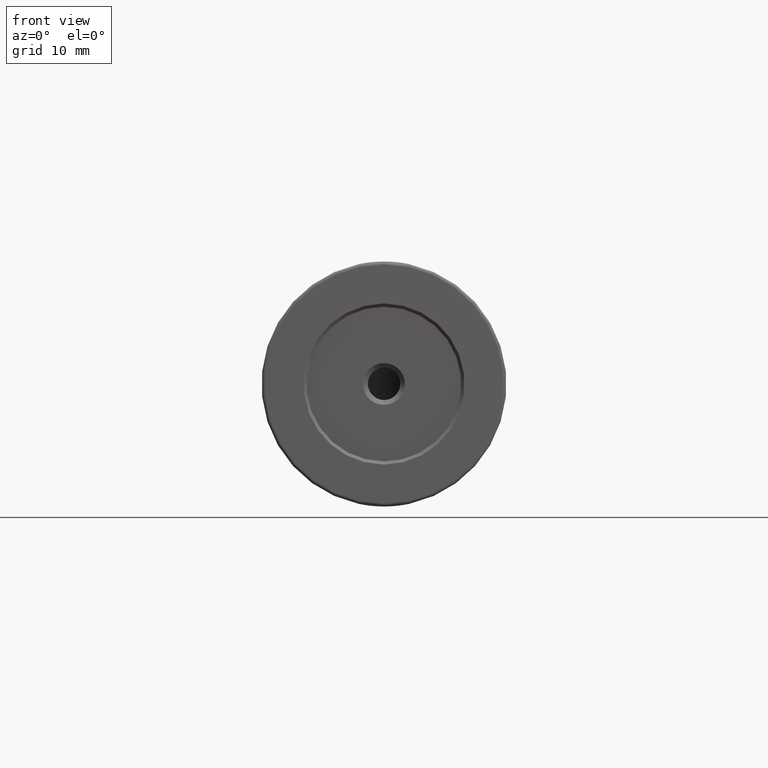
[diagram: clean part render]
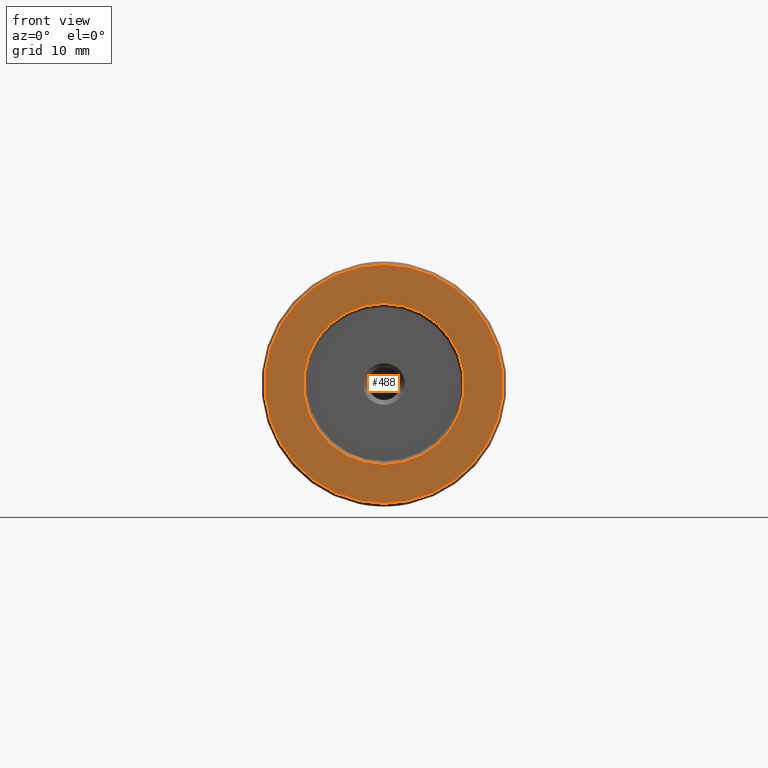
[diagram: same view with one face highlighted and labeled with its STEP entity id]
A machine part, front view. The second image highlights one B-rep face of the part: STEP entity #488.
In plain terms, the highlighted planar face has unit normal (0, 1, 0).
Its self-contained STEP definition (entity closure, byte-faithful):
#15 = CARTESIAN_POINT ( 'NONE',  ( -85.22679983354142053, -54.26133999167429067, 400.0000000000000000 ) ) ;
#18 = ORIENTED_EDGE ( 'NONE', *, *, #713, .T. ) ;
#71 = VERTEX_POINT ( 'NONE', #319 ) ;
#87 = ORIENTED_EDGE ( 'NONE', *, *, #460, .T. ) ;
#121 = EDGE_CURVE ( 'NONE', #704, #908, #599, .T. ) ;
#162 = EDGE_LOOP ( 'NONE', ( #951, #331 ) ) ;
#181 = DIRECTION ( 'NONE',  ( -0.0000000000000000000, 1.000000000000000000, -0.0000000000000000000 ) ) ;
#191 = PLANE ( 'NONE',  #805 ) ;
#287 = CARTESIAN_POINT ( 'NONE',  ( -85.22679983354142053, -54.26133999167429067, 418.5000000000000568 ) ) ;
#319 = CARTESIAN_POINT ( 'NONE',  ( -85.22679983354142053, -54.26133999167429067, 387.5000000000000000 ) ) ;
#320 = CIRCLE ( 'NONE', #550, 18.50000000000001776 ) ;
#331 = ORIENTED_EDGE ( 'NONE', *, *, #121, .T. ) ;
#332 = DIRECTION ( 'NONE',  ( 0.0000000000000000000, 0.0000000000000000000, 1.000000000000000000 ) ) ;
#368 = CARTESIAN_POINT ( 'NONE',  ( -85.22679983354142053, -54.26133999167429067, 400.0000000000000000 ) ) ;
#405 = EDGE_CURVE ( 'NONE', #908, #704, #320, .T. ) ;
#434 = DIRECTION ( 'NONE',  ( 0.0000000000000000000, -0.0000000000000000000, 1.000000000000000000 ) ) ;
#458 = CIRCLE ( 'NONE', #684, 12.50000000000001066 ) ;
#460 = EDGE_CURVE ( 'NONE', #503, #71, #458, .T. ) ;
#473 = AXIS2_PLACEMENT_3D ( 'NONE', #15, #181, #332 ) ;
#486 = CARTESIAN_POINT ( 'NONE',  ( -85.22679983354142053, -54.26133999167429067, 400.0000000000000000 ) ) ;
#488 = ADVANCED_FACE ( 'NONE', ( #531, #917 ), #191, .F. ) ;
#491 = CARTESIAN_POINT ( 'NONE',  ( -85.22679983354142053, -54.26133999167429067, 381.5000000000000000 ) ) ;
#503 = VERTEX_POINT ( 'NONE', #759 ) ;
#516 = DIRECTION ( 'NONE',  ( 0.0000000000000000000, 0.0000000000000000000, 1.000000000000000000 ) ) ;
#522 = DIRECTION ( 'NONE',  ( 0.0000000000000000000, 1.000000000000000000, 0.0000000000000000000 ) ) ;
#531 = FACE_BOUND ( 'NONE', #879, .T. ) ;
#550 = AXIS2_PLACEMENT_3D ( 'NONE', #486, #652, #958 ) ;
#566 = CARTESIAN_POINT ( 'NONE',  ( -85.22679983354142053, -54.26133999167429067, 400.0000000000000000 ) ) ;
#599 = CIRCLE ( 'NONE', #698, 18.50000000000001776 ) ;
#652 = DIRECTION ( 'NONE',  ( -0.0000000000000000000, -1.000000000000000000, -0.0000000000000000000 ) ) ;
#684 = AXIS2_PLACEMENT_3D ( 'NONE', #748, #984, #516 ) ;
#698 = AXIS2_PLACEMENT_3D ( 'NONE', #566, #719, #946 ) ;
#704 = VERTEX_POINT ( 'NONE', #491 ) ;
#713 = EDGE_CURVE ( 'NONE', #71, #503, #771, .T. ) ;
#719 = DIRECTION ( 'NONE',  ( -0.0000000000000000000, -1.000000000000000000, -0.0000000000000000000 ) ) ;
#748 = CARTESIAN_POINT ( 'NONE',  ( -85.22679983354142053, -54.26133999167429067, 400.0000000000000000 ) ) ;
#759 = CARTESIAN_POINT ( 'NONE',  ( -85.22679983354142053, -54.26133999167429067, 412.5000000000000568 ) ) ;
#771 = CIRCLE ( 'NONE', #473, 12.50000000000001066 ) ;
#805 = AXIS2_PLACEMENT_3D ( 'NONE', #368, #522, #434 ) ;
#879 = EDGE_LOOP ( 'NONE', ( #87, #18 ) ) ;
#908 = VERTEX_POINT ( 'NONE', #287 ) ;
#917 = FACE_OUTER_BOUND ( 'NONE', #162, .T. ) ;
#946 = DIRECTION ( 'NONE',  ( 0.0000000000000000000, 0.0000000000000000000, 1.000000000000000000 ) ) ;
#951 = ORIENTED_EDGE ( 'NONE', *, *, #405, .T. ) ;
#958 = DIRECTION ( 'NONE',  ( 0.0000000000000000000, 0.0000000000000000000, 1.000000000000000000 ) ) ;
#984 = DIRECTION ( 'NONE',  ( -0.0000000000000000000, 1.000000000000000000, -0.0000000000000000000 ) ) ;